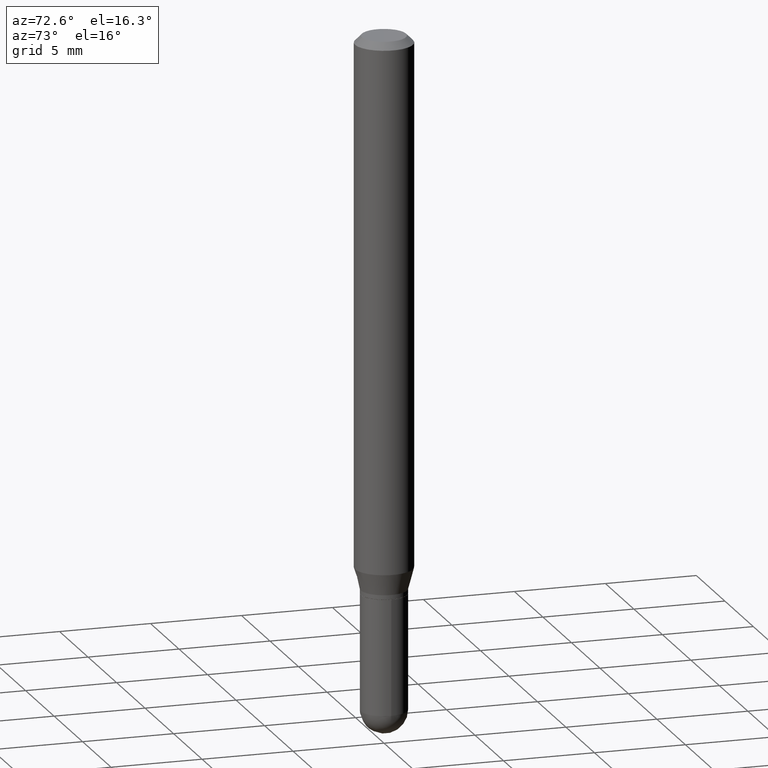
[diagram: clean part render]
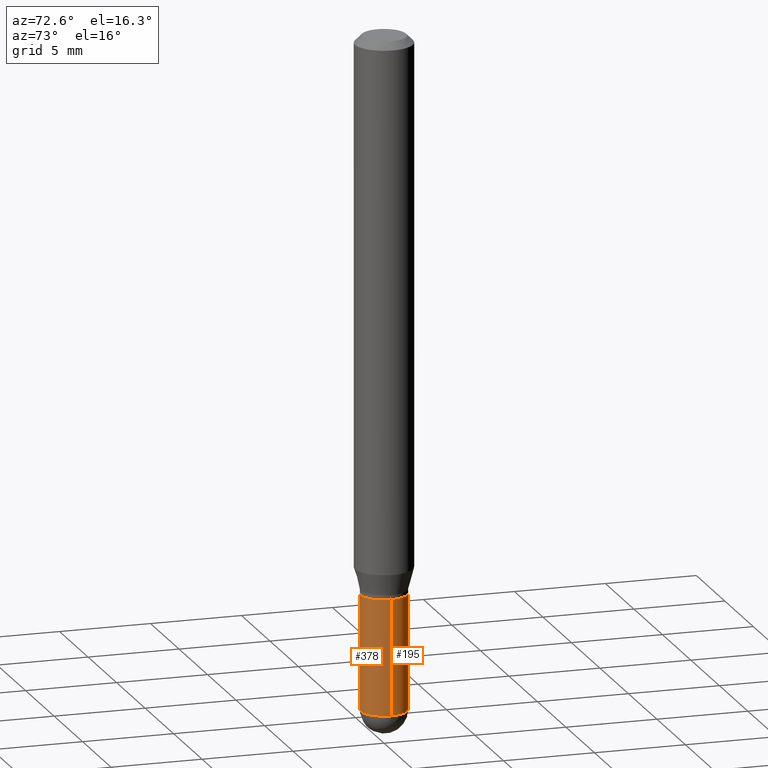
[diagram: same view with one multi-face feature highlighted, each face labeled with its STEP entity id]
A machine part, auxiliary view. The highlighted faces form ONE feature: a constant-radius fillet chain: 2 tangent blend faces with common blend radius 1.27 mm. The faces share edges in the B-rep.
Their STEP definitions:
[1] entity #378 (Cylinder):
#1 = DIRECTION ( 'NONE',  ( -2.445468806185136597E-29, 3.491481338843145583E-15, 1.000000000000000000 ) ) ;
#17 = DIRECTION ( 'NONE',  ( -2.445468806185136597E-29, 3.491481338843145583E-15, 1.000000000000000000 ) ) ;
#39 = ORIENTED_EDGE ( 'NONE', *, *, #487, .T. ) ;
#59 = ORIENTED_EDGE ( 'NONE', *, *, #146, .T. ) ;
#69 = LINE ( 'NONE', #152, #446 ) ;
#74 = DIRECTION ( 'NONE',  ( -2.445468806185136877E-29, 3.491481338843145188E-15, 1.000000000000000000 ) ) ;
#92 = EDGE_CURVE ( 'NONE', #451, #284, #308, .T. ) ;
#97 = CIRCLE ( 'NONE', #390, 0.04999999999999999584 ) ;
#129 = CARTESIAN_POINT ( 'NONE',  ( -0.04999999999999999584, 3.552713678800500634E-16, -2.459467545127452961E-30 ) ) ;
#146 = EDGE_CURVE ( 'NONE', #284, #422, #97, .T. ) ;
#152 = CARTESIAN_POINT ( 'NONE',  ( 0.04999999999999999584, -3.491481338843132862E-16, 2.438088387897967896E-30 ) ) ;
#175 = CARTESIAN_POINT ( 'NONE',  ( 0.04999999999999999584, -4.975360907851482386E-15, -1.450000000000000178 ) ) ;
#178 = DIRECTION ( 'NONE',  ( 1.000000000000000000, -6.982962677686265922E-15, 4.876176775795936353E-29 ) ) ;
#191 = VECTOR ( 'NONE', #339, 39.37007874015748143 ) ;
#196 = DIRECTION ( 'NONE',  ( 1.000000000000000000, -6.982962677686275388E-15, 0.000000000000000000 ) ) ;
#202 = ORIENTED_EDGE ( 'NONE', *, *, #223, .F. ) ;
#223 = EDGE_CURVE ( 'NONE', #451, #310, #442, .T. ) ;
#227 = VERTEX_POINT ( 'NONE', #257 ) ;
#230 = ORIENTED_EDGE ( 'NONE', *, *, #233, .F. ) ;
#232 = AXIS2_PLACEMENT_3D ( 'NONE', #376, #17, #178 ) ;
#233 = EDGE_CURVE ( 'NONE', #310, #227, #414, .T. ) ;
#246 = DIRECTION ( 'NONE',  ( -2.445468806185136597E-29, 3.491481338843145583E-15, 1.000000000000000000 ) ) ;
#251 = CARTESIAN_POINT ( 'NONE',  ( 3.545929768968448850E-29, -5.062647941322561509E-15, -1.450000000000000178 ) ) ;
#256 = DIRECTION ( 'NONE',  ( -2.445468806185136597E-29, 3.491481338843145583E-15, 1.000000000000000000 ) ) ;
#257 = CARTESIAN_POINT ( 'NONE',  ( 0.05000000000000000278, -4.538925740496089139E-15, -1.200000000000000178 ) ) ;
#284 = VERTEX_POINT ( 'NONE', #290 ) ;
#290 = CARTESIAN_POINT ( 'NONE',  ( -3.552713678800146632E-16, -0.05000000000000506817, -1.449999999999999734 ) ) ;
#300 = FACE_OUTER_BOUND ( 'NONE', #499, .T. ) ;
#308 = CIRCLE ( 'NONE', #445, 0.04999999999999999584 ) ;
#310 = VERTEX_POINT ( 'NONE', #454 ) ;
#317 = ORIENTED_EDGE ( 'NONE', *, *, #92, .T. ) ;
#324 = CARTESIAN_POINT ( 'NONE',  ( -0.04999999999999999584, -4.270941406087117853E-15, -1.450000000000000178 ) ) ;
#339 = DIRECTION ( 'NONE',  ( -2.445468806185136877E-29, 3.491481338843145188E-15, 1.000000000000000000 ) ) ;
#355 = CARTESIAN_POINT ( 'NONE',  ( 3.545929768968448850E-29, -5.062647941322561509E-15, -1.450000000000000178 ) ) ;
#366 = AXIS2_PLACEMENT_3D ( 'NONE', #477, #256, #402 ) ;
#376 = CARTESIAN_POINT ( 'NONE',  ( 0.000000000000000000, 0.000000000000000000, 0.000000000000000000 ) ) ;
#378 = ADVANCED_FACE ( 'NONE', ( #300 ), #385, .T. ) ;
#385 = CYLINDRICAL_SURFACE ( 'NONE', #232, 0.04999999999999999584 ) ;
#390 = AXIS2_PLACEMENT_3D ( 'NONE', #251, #1, #448 ) ;
#402 = DIRECTION ( 'NONE',  ( 1.000000000000000000, -6.982962677686274599E-15, 0.000000000000000000 ) ) ;
#414 = CIRCLE ( 'NONE', #366, 0.05000000000000000278 ) ;
#422 = VERTEX_POINT ( 'NONE', #175 ) ;
#442 = LINE ( 'NONE', #129, #191 ) ;
#445 = AXIS2_PLACEMENT_3D ( 'NONE', #355, #246, #196 ) ;
#446 = VECTOR ( 'NONE', #74, 39.37007874015748143 ) ;
#448 = DIRECTION ( 'NONE',  ( 1.000000000000000000, -6.982962677686275388E-15, 0.000000000000000000 ) ) ;
#451 = VERTEX_POINT ( 'NONE', #324 ) ;
#454 = CARTESIAN_POINT ( 'NONE',  ( -0.05000000000000000278, -4.270941406087117853E-15, -1.200000000000000178 ) ) ;
#477 = CARTESIAN_POINT ( 'NONE',  ( 2.934562567422164701E-29, -4.189777606611775804E-15, -1.200000000000000178 ) ) ;
#487 = EDGE_CURVE ( 'NONE', #422, #227, #69, .T. ) ;
#499 = EDGE_LOOP ( 'NONE', ( #202, #317, #59, #39, #230 ) ) ;
[2] entity #195 (Cylinder):
#46 = FACE_OUTER_BOUND ( 'NONE', #220, .T. ) ;
#69 = LINE ( 'NONE', #152, #446 ) ;
#74 = DIRECTION ( 'NONE',  ( -2.445468806185136877E-29, 3.491481338843145188E-15, 1.000000000000000000 ) ) ;
#95 = EDGE_CURVE ( 'NONE', #422, #186, #302, .T. ) ;
#124 = DIRECTION ( 'NONE',  ( -2.445468806185136597E-29, 3.491481338843145583E-15, 1.000000000000000000 ) ) ;
#129 = CARTESIAN_POINT ( 'NONE',  ( -0.04999999999999999584, 3.552713678800500634E-16, -2.459467545127452961E-30 ) ) ;
#152 = CARTESIAN_POINT ( 'NONE',  ( 0.04999999999999999584, -3.491481338843132862E-16, 2.438088387897967896E-30 ) ) ;
#157 = ORIENTED_EDGE ( 'NONE', *, *, #487, .F. ) ;
#173 = DIRECTION ( 'NONE',  ( 1.000000000000000000, -6.982962677686274599E-15, 0.000000000000000000 ) ) ;
#175 = CARTESIAN_POINT ( 'NONE',  ( 0.04999999999999999584, -4.975360907851482386E-15, -1.450000000000000178 ) ) ;
#183 = AXIS2_PLACEMENT_3D ( 'NONE', #476, #124, #485 ) ;
#186 = VERTEX_POINT ( 'NONE', #293 ) ;
#187 = EDGE_CURVE ( 'NONE', #227, #310, #482, .T. ) ;
#191 = VECTOR ( 'NONE', #339, 39.37007874015748143 ) ;
#193 = DIRECTION ( 'NONE',  ( -2.445468806185136597E-29, 3.491481338843145583E-15, 1.000000000000000000 ) ) ;
#195 = ADVANCED_FACE ( 'NONE', ( #46 ), #370, .T. ) ;
#198 = CARTESIAN_POINT ( 'NONE',  ( 3.545929768968448850E-29, -5.062647941322561509E-15, -1.450000000000000178 ) ) ;
#205 = DIRECTION ( 'NONE',  ( 1.000000000000000000, -6.982962677686265922E-15, 4.876176775795936353E-29 ) ) ;
#213 = DIRECTION ( 'NONE',  ( -2.445468806185136597E-29, 3.491481338843145583E-15, 1.000000000000000000 ) ) ;
#220 = EDGE_LOOP ( 'NONE', ( #291, #427, #283, #157, #461 ) ) ;
#223 = EDGE_CURVE ( 'NONE', #451, #310, #442, .T. ) ;
#227 = VERTEX_POINT ( 'NONE', #257 ) ;
#252 = AXIS2_PLACEMENT_3D ( 'NONE', #405, #328, #205 ) ;
#254 = CARTESIAN_POINT ( 'NONE',  ( 2.934562567422164701E-29, -4.189777606611775804E-15, -1.200000000000000178 ) ) ;
#257 = CARTESIAN_POINT ( 'NONE',  ( 0.05000000000000000278, -4.538925740496089139E-15, -1.200000000000000178 ) ) ;
#283 = ORIENTED_EDGE ( 'NONE', *, *, #187, .F. ) ;
#291 = ORIENTED_EDGE ( 'NONE', *, *, #510, .T. ) ;
#293 = CARTESIAN_POINT ( 'NONE',  ( 3.491481338843487850E-16, 0.04999999999999494432, -1.450000000000000400 ) ) ;
#302 = CIRCLE ( 'NONE', #492, 0.04999999999999999584 ) ;
#304 = AXIS2_PLACEMENT_3D ( 'NONE', #254, #213, #173 ) ;
#310 = VERTEX_POINT ( 'NONE', #454 ) ;
#324 = CARTESIAN_POINT ( 'NONE',  ( -0.04999999999999999584, -4.270941406087117853E-15, -1.450000000000000178 ) ) ;
#328 = DIRECTION ( 'NONE',  ( -2.445468806185136597E-29, 3.491481338843145583E-15, 1.000000000000000000 ) ) ;
#339 = DIRECTION ( 'NONE',  ( -2.445468806185136877E-29, 3.491481338843145188E-15, 1.000000000000000000 ) ) ;
#370 = CYLINDRICAL_SURFACE ( 'NONE', #252, 0.04999999999999999584 ) ;
#400 = DIRECTION ( 'NONE',  ( 1.000000000000000000, -6.982962677686275388E-15, 0.000000000000000000 ) ) ;
#405 = CARTESIAN_POINT ( 'NONE',  ( 0.000000000000000000, 0.000000000000000000, 0.000000000000000000 ) ) ;
#422 = VERTEX_POINT ( 'NONE', #175 ) ;
#427 = ORIENTED_EDGE ( 'NONE', *, *, #223, .T. ) ;
#432 = CIRCLE ( 'NONE', #183, 0.04999999999999999584 ) ;
#442 = LINE ( 'NONE', #129, #191 ) ;
#446 = VECTOR ( 'NONE', #74, 39.37007874015748143 ) ;
#451 = VERTEX_POINT ( 'NONE', #324 ) ;
#454 = CARTESIAN_POINT ( 'NONE',  ( -0.05000000000000000278, -4.270941406087117853E-15, -1.200000000000000178 ) ) ;
#461 = ORIENTED_EDGE ( 'NONE', *, *, #95, .T. ) ;
#476 = CARTESIAN_POINT ( 'NONE',  ( 3.545929768968448850E-29, -5.062647941322561509E-15, -1.450000000000000178 ) ) ;
#482 = CIRCLE ( 'NONE', #304, 0.05000000000000000278 ) ;
#485 = DIRECTION ( 'NONE',  ( 1.000000000000000000, -6.982962677686275388E-15, 0.000000000000000000 ) ) ;
#487 = EDGE_CURVE ( 'NONE', #422, #227, #69, .T. ) ;
#492 = AXIS2_PLACEMENT_3D ( 'NONE', #198, #193, #400 ) ;
#510 = EDGE_CURVE ( 'NONE', #186, #451, #432, .T. ) ;